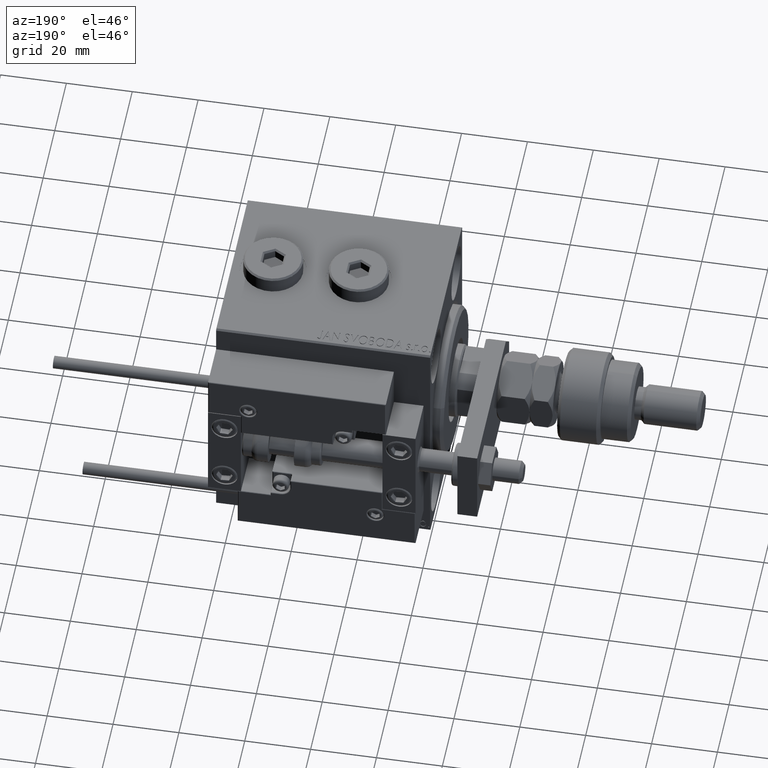
[diagram: clean part render]
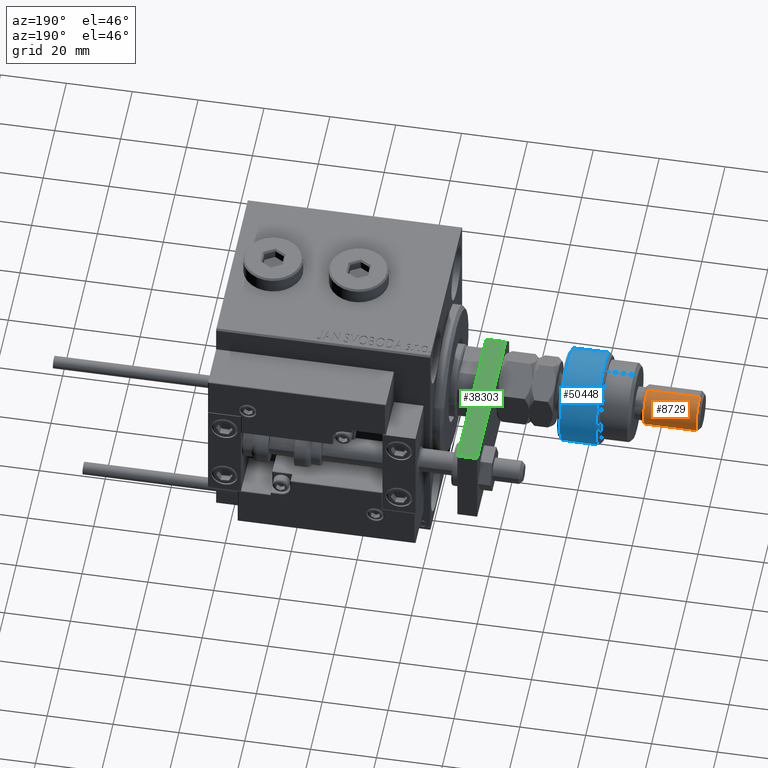
[diagram: same view with three faces highlighted in distinct colors, each labeled with its STEP entity id]
A machine part, auxiliary view with three faces highlighted in distinct colors.
Their STEP definitions:

[orange] entity #8729 — the highlighted cylindrical surface (edge-blend (fillet) strip) has radius 6 mm, axis along (1, -0, -0).
#1560 = CIRCLE ( 'NONE', #32245, 6.000000000000000888 ) ;
#4005 = EDGE_CURVE ( 'NONE', #37435, #52498, #10173, .T. ) ;
#4021 = DIRECTION ( 'NONE',  ( -0.000000000000000000, -0.000000000000000000, -1.000000000000000000 ) ) ;
#4523 = DIRECTION ( 'NONE',  ( 1.000000000000000000, 0.000000000000000000, 0.000000000000000000 ) ) ;
#5472 = DIRECTION ( 'NONE',  ( 0.000000000000000000, 0.000000000000000000, -1.000000000000000000 ) ) ;
#6240 = LINE ( 'NONE', #22154, #25437 ) ;
#8693 = CARTESIAN_POINT ( 'NONE',  ( 6.000000000000000888, 7.347880794884120722E-16, 41.99999999999999289 ) ) ;
#8715 = VECTOR ( 'NONE', #4021, 1000.000000000000000 ) ;
#8729 = ADVANCED_FACE ( 'NONE', ( #54293 ), #29073, .T. ) ;
#9104 = VERTEX_POINT ( 'NONE', #29813 ) ;
#10127 = CARTESIAN_POINT ( 'NONE',  ( -6.000000000000000888, 0.000000000000000000, 24.99999999999999645 ) ) ;
#10173 = CIRCLE ( 'NONE', #25963, 6.000000000000000888 ) ;
#13580 = ORIENTED_EDGE ( 'NONE', *, *, #43018, .T. ) ;
#14750 = EDGE_CURVE ( 'NONE', #9104, #37435, #45721, .T. ) ;
#18498 = CARTESIAN_POINT ( 'NONE',  ( 6.000000000000000888, 7.347880794884120722E-16, 24.99999999999999645 ) ) ;
#20286 = DIRECTION ( 'NONE',  ( -1.000000000000000000, 0.000000000000000000, 0.000000000000000000 ) ) ;
#21415 = ORIENTED_EDGE ( 'NONE', *, *, #14750, .T. ) ;
#21943 = CARTESIAN_POINT ( 'NONE',  ( 0.000000000000000000, 0.000000000000000000, 40.99999999999997868 ) ) ;
#22154 = CARTESIAN_POINT ( 'NONE',  ( -6.000000000000000888, 0.000000000000000000, 41.99999999999999289 ) ) ;
#22630 = AXIS2_PLACEMENT_3D ( 'NONE', #41127, #24413, #20286 ) ;
#24413 = DIRECTION ( 'NONE',  ( -0.000000000000000000, -0.000000000000000000, -1.000000000000000000 ) ) ;
#24701 = EDGE_CURVE ( 'NONE', #45909, #52498, #6240, .T. ) ;
#25437 = VECTOR ( 'NONE', #51229, 1000.000000000000000 ) ;
#25963 = AXIS2_PLACEMENT_3D ( 'NONE', #38788, #30028, #4523 ) ;
#26820 = ORIENTED_EDGE ( 'NONE', *, *, #24701, .F. ) ;
#29073 = CYLINDRICAL_SURFACE ( 'NONE', #22630, 6.000000000000000888 ) ;
#29813 = CARTESIAN_POINT ( 'NONE',  ( 6.000000000000000888, 7.347880794884120722E-16, 40.99999999999997868 ) ) ;
#30028 = DIRECTION ( 'NONE',  ( -0.000000000000000000, -0.000000000000000000, 1.000000000000000000 ) ) ;
#32245 = AXIS2_PLACEMENT_3D ( 'NONE', #21943, #5472, #43053 ) ;
#33305 = CARTESIAN_POINT ( 'NONE',  ( -6.000000000000000888, 0.000000000000000000, 40.99999999999997868 ) ) ;
#37167 = ORIENTED_EDGE ( 'NONE', *, *, #4005, .T. ) ;
#37435 = VERTEX_POINT ( 'NONE', #18498 ) ;
#38788 = CARTESIAN_POINT ( 'NONE',  ( 0.000000000000000000, 0.000000000000000000, 24.99999999999999645 ) ) ;
#41127 = CARTESIAN_POINT ( 'NONE',  ( 0.000000000000000000, 0.000000000000000000, 41.99999999999999289 ) ) ;
#43018 = EDGE_CURVE ( 'NONE', #45909, #9104, #1560, .T. ) ;
#43053 = DIRECTION ( 'NONE',  ( 1.000000000000000000, 0.000000000000000000, 0.000000000000000000 ) ) ;
#45721 = LINE ( 'NONE', #8693, #8715 ) ;
#45909 = VERTEX_POINT ( 'NONE', #33305 ) ;
#47985 = EDGE_LOOP ( 'NONE', ( #13580, #21415, #37167, #26820 ) ) ;
#51229 = DIRECTION ( 'NONE',  ( -0.000000000000000000, -0.000000000000000000, -1.000000000000000000 ) ) ;
#52498 = VERTEX_POINT ( 'NONE', #10127 ) ;
#54293 = FACE_OUTER_BOUND ( 'NONE', #47985, .T. ) ;

[blue] entity #50448 — the highlighted cylindrical surface (partial cylindrical patch) has radius 14 mm, axis along (1, -0, -0).
#437 = ORIENTED_EDGE ( 'NONE', *, *, #6295, .T. ) ;
#571 = CARTESIAN_POINT ( 'NONE',  ( 0.000000000000000000, 0.000000000000000000, 1.000000000000018208 ) ) ;
#2604 = DIRECTION ( 'NONE',  ( 1.000000000000000000, 0.000000000000000000, 0.000000000000000000 ) ) ;
#3928 = VERTEX_POINT ( 'NONE', #41820 ) ;
#6295 = EDGE_CURVE ( 'NONE', #42931, #42869, #13800, .T. ) ;
#6520 = EDGE_CURVE ( 'NONE', #3928, #45889, #11179, .T. ) ;
#10297 = AXIS2_PLACEMENT_3D ( 'NONE', #35536, #18259, #2604 ) ;
#11034 = DIRECTION ( 'NONE',  ( -1.000000000000000000, 0.000000000000000000, 0.000000000000000000 ) ) ;
#11179 = CIRCLE ( 'NONE', #10297, 14.00000000000000000 ) ;
#13226 = VECTOR ( 'NONE', #14871, 1000.000000000000000 ) ;
#13800 = CIRCLE ( 'NONE', #17286, 14.00000000000000000 ) ;
#14058 = CARTESIAN_POINT ( 'NONE',  ( -12.64911064067351809, 6.000000000000000000, 14.50000000000000000 ) ) ;
#14871 = DIRECTION ( 'NONE',  ( -0.000000000000000000, -0.000000000000000000, -1.000000000000000000 ) ) ;
#15469 = LINE ( 'NONE', #40441, #18971 ) ;
#17286 = AXIS2_PLACEMENT_3D ( 'NONE', #30617, #46529, #22385 ) ;
#18259 = DIRECTION ( 'NONE',  ( -0.000000000000000000, -0.000000000000000000, 1.000000000000000000 ) ) ;
#18971 = VECTOR ( 'NONE', #32484, 1000.000000000000000 ) ;
#19841 = EDGE_LOOP ( 'NONE', ( #44057, #437, #28725, #42136, #33991 ) ) ;
#22385 = DIRECTION ( 'NONE',  ( 1.000000000000000000, 0.000000000000000000, 0.000000000000000000 ) ) ;
#23131 = CARTESIAN_POINT ( 'NONE',  ( 0.000000000000000000, 0.000000000000000000, 13.00000000000000000 ) ) ;
#23801 = CARTESIAN_POINT ( 'NONE',  ( -12.64911064067351809, 6.000000000000000000, 12.00000000000002842 ) ) ;
#25358 = CARTESIAN_POINT ( 'NONE',  ( -12.64911064067351809, 6.000000000000000000, 1.000000000000021760 ) ) ;
#28725 = ORIENTED_EDGE ( 'NONE', *, *, #40065, .T. ) ;
#30207 = DIRECTION ( 'NONE',  ( 1.000000000000000000, 0.000000000000000000, 0.000000000000000000 ) ) ;
#30617 = CARTESIAN_POINT ( 'NONE',  ( 0.000000000000000000, 0.000000000000000000, 12.00000000000002842 ) ) ;
#31625 = CYLINDRICAL_SURFACE ( 'NONE', #35864, 14.00000000000000000 ) ;
#32484 = DIRECTION ( 'NONE',  ( -0.000000000000000000, -0.000000000000000000, -1.000000000000000000 ) ) ;
#32615 = CARTESIAN_POINT ( 'NONE',  ( -12.64911064067351809, -5.999999999999999112, 1.000000000000021760 ) ) ;
#33991 = ORIENTED_EDGE ( 'NONE', *, *, #6520, .T. ) ;
#34044 = DIRECTION ( 'NONE',  ( -0.000000000000000000, -0.000000000000000000, 1.000000000000000000 ) ) ;
#35536 = CARTESIAN_POINT ( 'NONE',  ( 0.000000000000000000, 0.000000000000000000, 1.000000000000018208 ) ) ;
#35864 = AXIS2_PLACEMENT_3D ( 'NONE', #23131, #39847, #11034 ) ;
#39847 = DIRECTION ( 'NONE',  ( -0.000000000000000000, -0.000000000000000000, -1.000000000000000000 ) ) ;
#40065 = EDGE_CURVE ( 'NONE', #42869, #48183, #15469, .T. ) ;
#40207 = AXIS2_PLACEMENT_3D ( 'NONE', #571, #34044, #30207 ) ;
#40441 = CARTESIAN_POINT ( 'NONE',  ( -12.64911064067351809, -5.999999999999999112, 14.50000000000000000 ) ) ;
#41820 = CARTESIAN_POINT ( 'NONE',  ( 14.00000000000000000, 0.000000000000000000, 1.000000000000018208 ) ) ;
#41935 = CIRCLE ( 'NONE', #40207, 14.00000000000000000 ) ;
#42136 = ORIENTED_EDGE ( 'NONE', *, *, #49761, .T. ) ;
#42869 = VERTEX_POINT ( 'NONE', #49016 ) ;
#42931 = VERTEX_POINT ( 'NONE', #23801 ) ;
#43141 = LINE ( 'NONE', #14058, #13226 ) ;
#44057 = ORIENTED_EDGE ( 'NONE', *, *, #54172, .F. ) ;
#45889 = VERTEX_POINT ( 'NONE', #25358 ) ;
#46529 = DIRECTION ( 'NONE',  ( 0.000000000000000000, 0.000000000000000000, -1.000000000000000000 ) ) ;
#48183 = VERTEX_POINT ( 'NONE', #32615 ) ;
#49016 = CARTESIAN_POINT ( 'NONE',  ( -12.64911064067351809, -5.999999999999999112, 12.00000000000002842 ) ) ;
#49761 = EDGE_CURVE ( 'NONE', #48183, #3928, #41935, .T. ) ;
#50448 = ADVANCED_FACE ( 'NONE', ( #52472 ), #31625, .T. ) ;
#52472 = FACE_OUTER_BOUND ( 'NONE', #19841, .T. ) ;
#54172 = EDGE_CURVE ( 'NONE', #42931, #45889, #43141, .T. ) ;

[green] entity #38303 — the highlighted planar face has unit normal (-0, -0, -1).
#403 = CARTESIAN_POINT ( 'NONE',  ( 12.50000000000000355, 4.814824860968089633E-32, 6.000000000000000000 ) ) ;
#2863 = CARTESIAN_POINT ( 'NONE',  ( 12.50000000000000000, 55.00000000000000000, 0.000000000000000000 ) ) ;
#3244 = VERTEX_POINT ( 'NONE', #13469 ) ;
#3404 = ORIENTED_EDGE ( 'NONE', *, *, #34519, .F. ) ;
#3593 = CARTESIAN_POINT ( 'NONE',  ( 12.50000000000000355, 5.659999999999991260, 6.000000000000000000 ) ) ;
#4151 = CARTESIAN_POINT ( 'NONE',  ( 12.50000000000000000, 55.00000000000000000, 6.000000000000000000 ) ) ;
#4429 = VECTOR ( 'NONE', #48241, 1000.000000000000000 ) ;
#6849 = LINE ( 'NONE', #35660, #16109 ) ;
#13469 = CARTESIAN_POINT ( 'NONE',  ( 12.50000000000000355, 5.659999999999991260, 0.000000000000000000 ) ) ;
#15234 = VECTOR ( 'NONE', #46491, 1000.000000000000000 ) ;
#15261 = DIRECTION ( 'NONE',  ( 0.000000000000000000, 0.000000000000000000, -1.000000000000000000 ) ) ;
#16109 = VECTOR ( 'NONE', #44158, 1000.000000000000000 ) ;
#16396 = CARTESIAN_POINT ( 'NONE',  ( 12.50000000000000355, 4.814824860968089633E-32, 6.000000000000000000 ) ) ;
#18898 = LINE ( 'NONE', #23570, #4429 ) ;
#21347 = EDGE_CURVE ( 'NONE', #3244, #21971, #6849, .T. ) ;
#21971 = VERTEX_POINT ( 'NONE', #2863 ) ;
#23570 = CARTESIAN_POINT ( 'NONE',  ( 12.50000000000000000, 55.00000000000000000, 6.000000000000000000 ) ) ;
#27239 = EDGE_LOOP ( 'NONE', ( #3404, #41543, #36113, #38186 ) ) ;
#29298 = DIRECTION ( 'NONE',  ( 6.308085367188389994E-17, -1.000000000000000000, 0.000000000000000000 ) ) ;
#30555 = VECTOR ( 'NONE', #15261, 1000.000000000000000 ) ;
#31739 = CARTESIAN_POINT ( 'NONE',  ( 12.50000000000000355, 5.659999999999991260, 6.000000000000000000 ) ) ;
#31791 = FACE_OUTER_BOUND ( 'NONE', #27239, .T. ) ;
#34519 = EDGE_CURVE ( 'NONE', #39228, #49698, #37720, .T. ) ;
#35660 = CARTESIAN_POINT ( 'NONE',  ( 12.50000000000000355, 4.814824860968089633E-32, 0.000000000000000000 ) ) ;
#36113 = ORIENTED_EDGE ( 'NONE', *, *, #21347, .T. ) ;
#37720 = LINE ( 'NONE', #403, #15234 ) ;
#38186 = ORIENTED_EDGE ( 'NONE', *, *, #52501, .F. ) ;
#38303 = ADVANCED_FACE ( 'NONE', ( #31791 ), #48508, .F. ) ;
#39228 = VERTEX_POINT ( 'NONE', #3593 ) ;
#41543 = ORIENTED_EDGE ( 'NONE', *, *, #44314, .T. ) ;
#44158 = DIRECTION ( 'NONE',  ( -6.308085367188389994E-17, 1.000000000000000000, 0.000000000000000000 ) ) ;
#44314 = EDGE_CURVE ( 'NONE', #39228, #3244, #52848, .T. ) ;
#46491 = DIRECTION ( 'NONE',  ( -6.308085367188389994E-17, 1.000000000000000000, 0.000000000000000000 ) ) ;
#48241 = DIRECTION ( 'NONE',  ( -0.000000000000000000, -0.000000000000000000, -1.000000000000000000 ) ) ;
#48508 = PLANE ( 'NONE',  #52219 ) ;
#49323 = DIRECTION ( 'NONE',  ( -1.000000000000000000, -6.308085367188389994E-17, 0.000000000000000000 ) ) ;
#49698 = VERTEX_POINT ( 'NONE', #4151 ) ;
#52219 = AXIS2_PLACEMENT_3D ( 'NONE', #16396, #49323, #29298 ) ;
#52501 = EDGE_CURVE ( 'NONE', #49698, #21971, #18898, .T. ) ;
#52848 = LINE ( 'NONE', #31739, #30555 ) ;